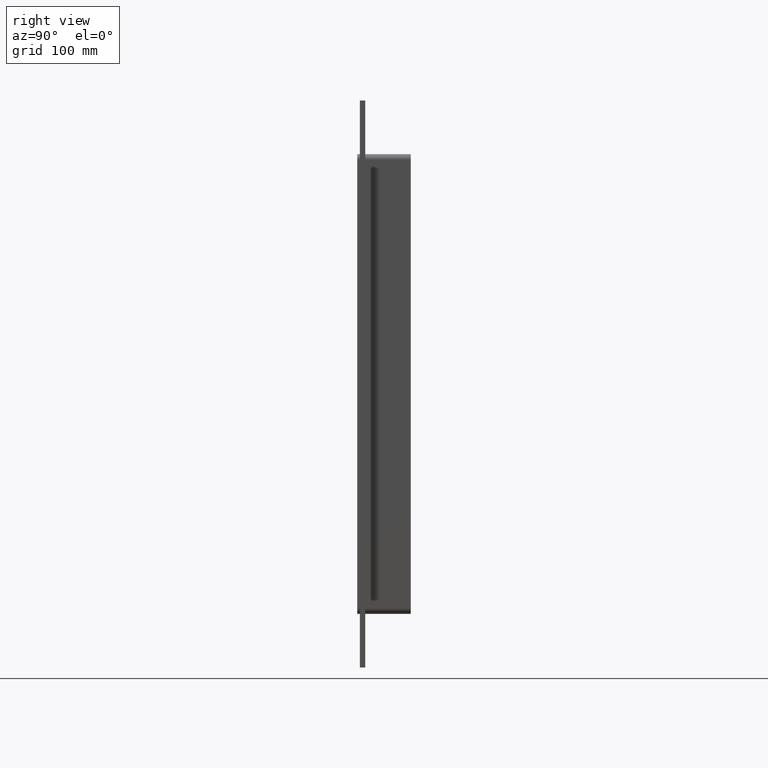
[diagram: clean part render]
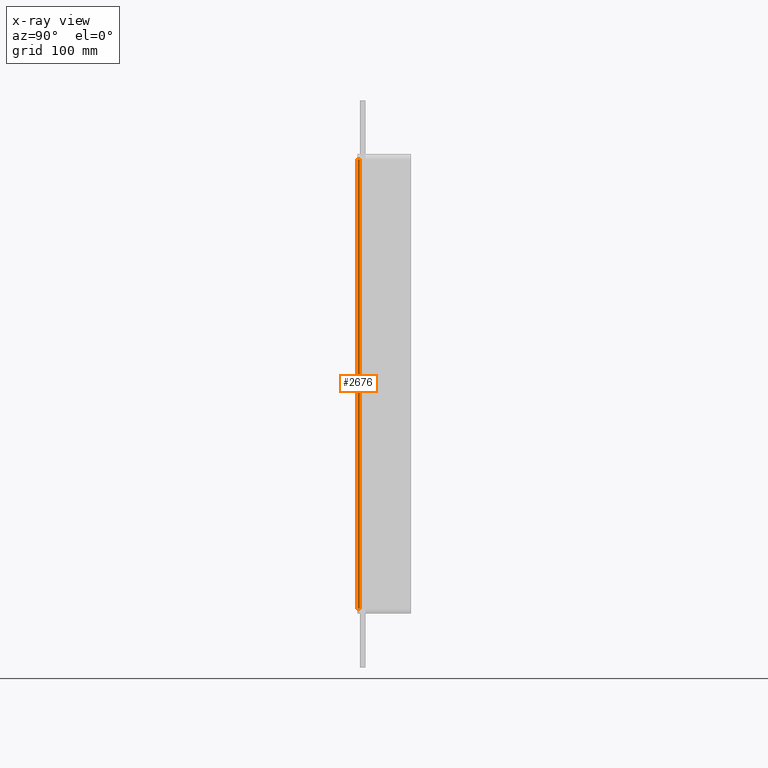
[diagram: x-ray — body ghosted, one internal face saturated and labeled with its STEP entity id]
A machine part, right view, then the same camera in x-ray: the body is ghosted and one INTERNAL B-rep face — a face not visible from any outside direction — is saturated and labeled: STEP entity #2676.
In plain terms, the highlighted planar face has unit normal (-1, 0, 0).
Its self-contained STEP definition (entity closure, byte-faithful):
#1643=CARTESIAN_POINT('',(-196.75000000000006,-3.0,251.25));
#1644=VERTEX_POINT('',#1643);
#1652=CARTESIAN_POINT('',(-196.75000000000006,-3.0,-251.25));
#1653=VERTEX_POINT('',#1652);
#1654=CARTESIAN_POINT('',(-196.75000000000006,-3.0,251.25));
#1655=DIRECTION('',(0.0,0.0,-1.0));
#1656=VECTOR('',#1655,502.5);
#1657=LINE('',#1654,#1656);
#1658=EDGE_CURVE('',#1644,#1653,#1657,.T.);
#2329=CARTESIAN_POINT('',(-196.75000000000006,0.0,-251.25));
#2330=VERTEX_POINT('',#2329);
#2340=CARTESIAN_POINT('',(-196.75000000000006,0.0,251.25));
#2341=VERTEX_POINT('',#2340);
#2342=CARTESIAN_POINT('',(-196.75000000000006,0.0,251.25000000000003));
#2343=DIRECTION('',(0.0,0.0,-1.0));
#2344=VECTOR('',#2343,502.5);
#2345=LINE('',#2342,#2344);
#2346=EDGE_CURVE('',#2341,#2330,#2345,.T.);
#2615=CARTESIAN_POINT('',(-196.75000000000006,0.0,251.25));
#2616=DIRECTION('',(0.0,-1.0,0.0));
#2617=VECTOR('',#2616,3.0);
#2618=LINE('',#2615,#2617);
#2619=EDGE_CURVE('',#2341,#1644,#2618,.T.);
#2660=CARTESIAN_POINT('',(-196.75000000000006,0.0,-257.25));
#2661=DIRECTION('',(-1.0,0.0,0.0));
#2662=DIRECTION('',(0.0,0.0,1.0));
#2663=AXIS2_PLACEMENT_3D('',#2660,#2661,#2662);
#2664=PLANE('',#2663);
#2665=ORIENTED_EDGE('',*,*,#2346,.T.);
#2666=CARTESIAN_POINT('',(-196.75000000000006,-3.0,-251.25));
#2667=DIRECTION('',(0.0,1.0,0.0));
#2668=VECTOR('',#2667,3.0);
#2669=LINE('',#2666,#2668);
#2670=EDGE_CURVE('',#1653,#2330,#2669,.T.);
#2671=ORIENTED_EDGE('',*,*,#2670,.F.);
#2672=ORIENTED_EDGE('',*,*,#1658,.F.);
#2673=ORIENTED_EDGE('',*,*,#2619,.F.);
#2674=EDGE_LOOP('',(#2665,#2671,#2672,#2673));
#2675=FACE_OUTER_BOUND('',#2674,.T.);
#2676=ADVANCED_FACE('',(#2675),#2664,.T.);